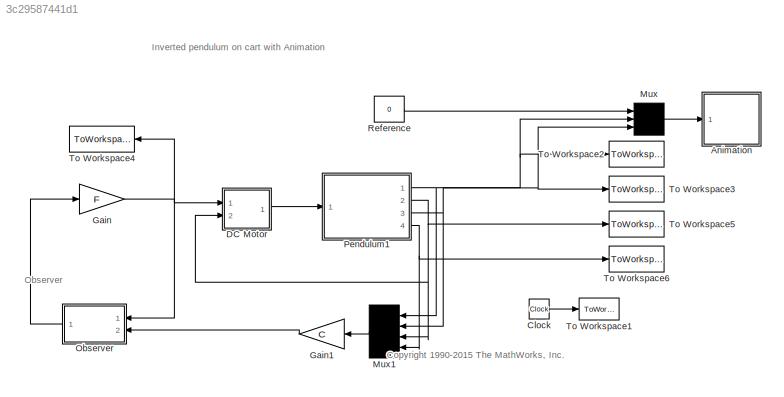
MODEL slx_3c29587441d1
KIND model
CONFIG AbsTol = 1e-6
CONFIG EnableMultiTasking = off
CONFIG FixedStep = auto
CONFIG MaxStep = 0.02
CONFIG MinStep = auto
CONFIG RelTol = 1e-3
CONFIG SampleTimeConstraint = Unconstrained
CONFIG SolverName = ode45
CONFIG StartTime = 0
CONFIG StopTime = 5
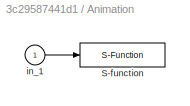
BLOCK [SubSystem] Animation
  Ports = [1]
  RequestExecContextInheritance = off
BLOCK [S-Function] Animation/S-function
  DeleteFcn = pendan([],[],[],'DeleteBlock');
  EnableBusSupport = off
  FunctionName = cartpend_anime
  Parameters = RefBlock
  Ports = [1]
  SFcnIsStateOwnerBlock = off
  SFunctionDeploymentMode = off
BLOCK [Inport] Animation/in_1
BLOCK [Clock] Clock
  Decimation = 1
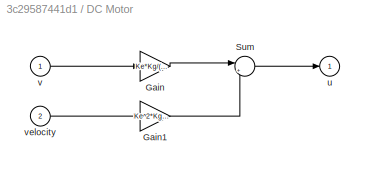
BLOCK [SubSystem] DC Motor
  Ports = [2, 1]
  RequestExecContextInheritance = off
BLOCK [Gain] DC Motor/Gain
  Gain = Ke*Kg/(R*rho)
BLOCK [Gain] DC Motor/Gain1
  Gain = Ke^2*Kg^2/(R*rho^2)
BLOCK [Sum] DC Motor/Sum
  Inputs = |+-
  Ports = [2, 1]
BLOCK [Outport] DC Motor/u
  InitialOutput = 0
  VectorParamsAs1DForOutWhenUnconnected = off
BLOCK [Inport] DC Motor/v
BLOCK [Inport] DC Motor/velocity
  Port = 2
BLOCK [Gain] Gain
  Gain = F
  Multiplication = Matrix(K*u)
BLOCK [Gain] Gain1
  Gain = C
  Multiplication = Matrix(K*u)
  NameLocation = top
BLOCK [Mux] Mux
  Inputs = 3
  Ports = [3, 1]
BLOCK [Mux] Mux1
  NameLocation = top
  Ports = [4, 1]
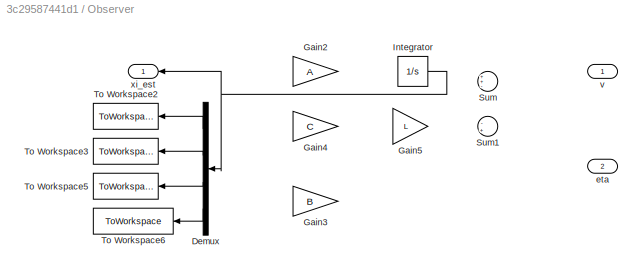
BLOCK [SubSystem] Observer
  NameLocation = top
  Ports = [2, 1]
  RequestExecContextInheritance = off
BLOCK [Demux] Observer/Demux
  NameLocation = top
  Ports = [1, 4]
BLOCK [Gain] Observer/Gain2
  Gain = A
  Multiplication = Matrix(K*u)
BLOCK [Gain] Observer/Gain3
  Gain = B
  Multiplication = Matrix(K*u)
BLOCK [Gain] Observer/Gain4
  Gain = C
  Multiplication = Matrix(K*u)
BLOCK [Gain] Observer/Gain5
  Gain = L
  Multiplication = Matrix(K*u)
BLOCK [Integrator] Observer/Integrator
  InitialCondition = [0; 0; 0; 0]
  Ports = [1, 1]
BLOCK [Sum] Observer/Sum
  Inputs = ++-
  Ports = [3, 1]
BLOCK [Sum] Observer/Sum1
  Inputs = -+
  Ports = [2, 1]
BLOCK [ToWorkspace] Observer/To Workspace2
  FixptAsFi = on
  MaxDataPoints = inf
  NameLocation = top
  Ports = [1]
  SampleTime = -1
  Save2DSignal = 2-D array (concatenate along first dimension)
  VariableName = position_est
BLOCK [ToWorkspace] Observer/To Workspace3
  FixptAsFi = on
  MaxDataPoints = inf
  NameLocation = top
  Ports = [1]
  SampleTime = -1
  Save2DSignal = 2-D array (concatenate along first dimension)
  VariableName = angle_est
BLOCK [ToWorkspace] Observer/To Workspace5
  FixptAsFi = on
  MaxDataPoints = inf
  NameLocation = top
  Ports = [1]
  SampleTime = -1
  Save2DSignal = 2-D array (concatenate along first dimension)
  VariableName = velocity_est
BLOCK [ToWorkspace] Observer/To Workspace6
  FixptAsFi = on
  MaxDataPoints = inf
  NameLocation = top
  Ports = [1]
  SampleTime = -1
  Save2DSignal = 2-D array (concatenate along first dimension)
  VariableName = angvelocity_est
BLOCK [Inport] Observer/eta
  Port = 2
BLOCK [Inport] Observer/v
BLOCK [Outport] Observer/xi_est
  NameLocation = top
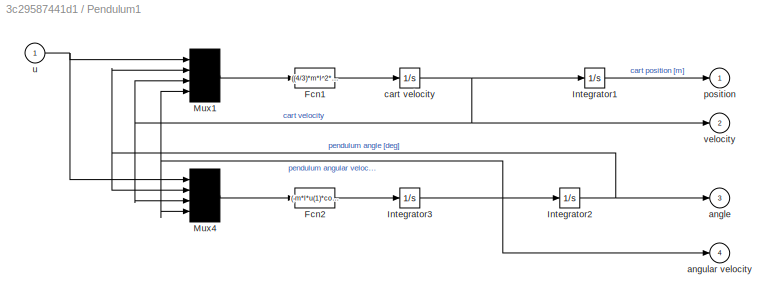
BLOCK [SubSystem] Pendulum1
  Ports = [1, 4]
  RequestExecContextInheritance = off
BLOCK [Fcn] Pendulum1/Fcn1
  Expr = ((4/3)*m*l^2*u(1) + (4/3)*m^2*l^3*u(4)^2*sin(u(2)) - (4/3)*m*l^2*Dx*u(3) - m^2*g*l^2*sin(u(2))*cos(u(2)) + Dt*m*l*u(4)*cos(u(2)))/((4/3)*(Mcart+m)*m*l^2 - m^2*l^2*cos(u(2))^2)
BLOCK [Fcn] Pendulum1/Fcn2
  Expr = (-m*l*u(1)*cos(u(2)) - m^2*l^2*u(4)^2*sin(u(2))*cos(u(2)) + Dx*m*l*u(3)*cos(u(2)) + (Mcart+m)*m*g*l*sin(u(2)) - (Mcart+m)*Dt*u(4))/((4/3)*(Mcart+m)*m*l^2 - m^2*l^2*cos(u(2))^2)
BLOCK [Integrator] Pendulum1/Integrator1
  InitialCondition = position_init
  Ports = [1, 1]
BLOCK [Integrator] Pendulum1/Integrator2
  InitialCondition = theta_init
  Ports = [1, 1]
BLOCK [Integrator] Pendulum1/Integrator3
  Ports = [1, 1]
BLOCK [Mux] Pendulum1/Mux1
  Ports = [4, 1]
BLOCK [Mux] Pendulum1/Mux4
  Ports = [4, 1]
BLOCK [Outport] Pendulum1/angle
  InitialOutput = 0
  Port = 3
  VectorParamsAs1DForOutWhenUnconnected = off
BLOCK [Outport] Pendulum1/angular velocity
  InitialOutput = 0
  Port = 4
  VectorParamsAs1DForOutWhenUnconnected = off
BLOCK [Integrator] Pendulum1/cart velocity
  Ports = [1, 1]
BLOCK [Outport] Pendulum1/position
  InitialOutput = 0
  VectorParamsAs1DForOutWhenUnconnected = off
BLOCK [Inport] Pendulum1/u
BLOCK [Outport] Pendulum1/velocity
  InitialOutput = 0
  Port = 2
  VectorParamsAs1DForOutWhenUnconnected = off
BLOCK [Constant] Reference
  Value = 0
BLOCK [ToWorkspace] To Workspace1
  FixptAsFi = on
  MaxDataPoints = inf
  Ports = [1]
  SampleTime = -1
  Save2DSignal = 2-D array (concatenate along first dimension)
  VariableName = t
BLOCK [ToWorkspace] To Workspace2
  FixptAsFi = on
  MaxDataPoints = inf
  Ports = [1]
  SampleTime = -1
  Save2DSignal = 2-D array (concatenate along first dimension)
  VariableName = position
BLOCK [ToWorkspace] To Workspace3
  FixptAsFi = on
  MaxDataPoints = inf
  Ports = [1]
  SampleTime = -1
  Save2DSignal = 2-D array (concatenate along first dimension)
  VariableName = angle
BLOCK [ToWorkspace] To Workspace4
  FixptAsFi = on
  MaxDataPoints = inf
  NameLocation = top
  Ports = [1]
  SampleTime = -1
  Save2DSignal = 2-D array (concatenate along first dimension)
  VariableName = input
BLOCK [ToWorkspace] To Workspace5
  FixptAsFi = on
  MaxDataPoints = inf
  Ports = [1]
  SampleTime = -1
  Save2DSignal = 2-D array (concatenate along first dimension)
  VariableName = velocity
BLOCK [ToWorkspace] To Workspace6
  FixptAsFi = on
  MaxDataPoints = inf
  Ports = [1]
  SampleTime = -1
  Save2DSignal = 2-D array (concatenate along first dimension)
  VariableName = angvelocity
ANNOTATION (root): <copyright redacted>
ANNOTATION (root): Inverted pendulum on cart with Animation
ANNOTATION (root): Observer
LINE Animation/in_1:1 -> Animation/S-function:1
LINE Clock:1 -> To Workspace1:1
LINE DC Motor/Gain1:1 -> DC Motor/Sum:2
LINE DC Motor/Gain:1 -> DC Motor/Sum:1
LINE DC Motor/Sum:1 -> DC Motor/u:1
LINE DC Motor/v:1 -> DC Motor/Gain:1
LINE DC Motor/velocity:1 -> DC Motor/Gain1:1
LINE DC Motor:1 -> Pendulum1:1
LINE Gain1:1 -> Observer:2
NET Gain:1 -> DC Motor:1, Observer:1, To Workspace4:1
LINE Mux1:1 -> Gain1:1
LINE Mux:1 -> Animation:1
LINE Observer/Demux:1 -> Observer/To Workspace2:1
LINE Observer/Demux:2 -> Observer/To Workspace3:1
LINE Observer/Demux:3 -> Observer/To Workspace5:1
LINE Observer/Demux:4 -> Observer/To Workspace6:1
NET Observer/Integrator:1 -> Observer/Demux:1, Observer/xi_est:1
LINE Observer:1 -> Gain:1
LINE Pendulum1/Fcn1:1 -> Pendulum1/cart velocity:1
LINE Pendulum1/Fcn2:1 -> Pendulum1/Integrator3:1
LINE Pendulum1/Integrator1:1 -> Pendulum1/position:1
NET Pendulum1/Integrator2:1 -> Pendulum1/Mux1:2, Pendulum1/Mux4:2, Pendulum1/angle:1
NET Pendulum1/Integrator3:1 -> Pendulum1/Integrator2:1, Pendulum1/Mux1:4, Pendulum1/Mux4:4, Pendulum1/angular velocity:1
LINE Pendulum1/Mux1:1 -> Pendulum1/Fcn1:1
LINE Pendulum1/Mux4:1 -> Pendulum1/Fcn2:1
NET Pendulum1/cart velocity:1 -> Pendulum1/Integrator1:1, Pendulum1/Mux1:3, Pendulum1/Mux4:3, Pendulum1/velocity:1
NET Pendulum1/u:1 -> Pendulum1/Mux1:1, Pendulum1/Mux4:1
NET Pendulum1:1 -> Mux1:1, Mux:2, To Workspace2:1
NET Pendulum1:2 -> DC Motor:2, Mux1:3, To Workspace5:1
NET Pendulum1:3 -> Mux1:2, Mux:3, To Workspace3:1
NET Pendulum1:4 -> Mux1:4, To Workspace6:1
LINE Reference:1 -> Mux:1
note: NET lines group one-source signal fan-out (src -> all destinations, sorted); 1:1 wires keep LINE
